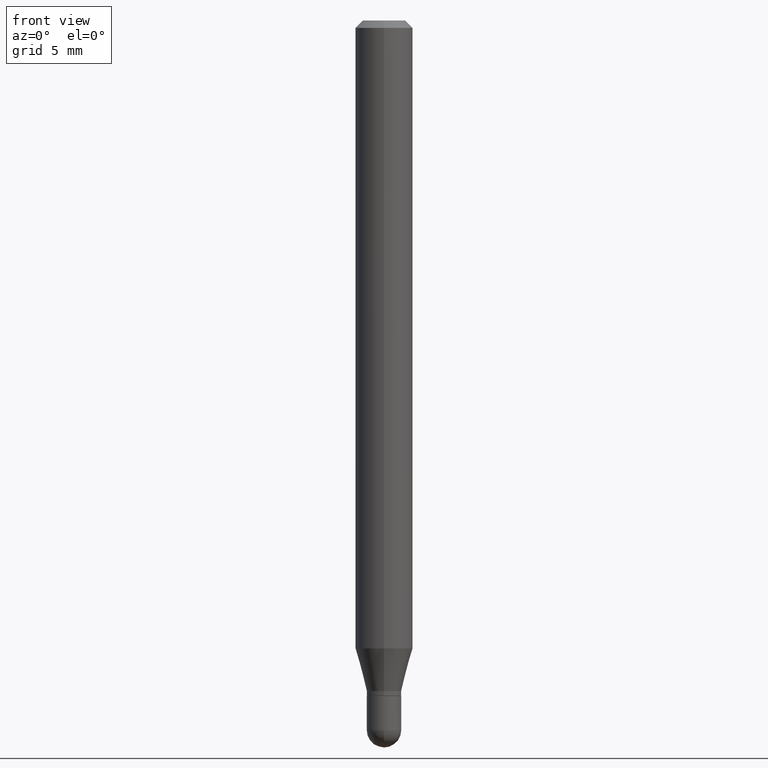
[diagram: clean part render]
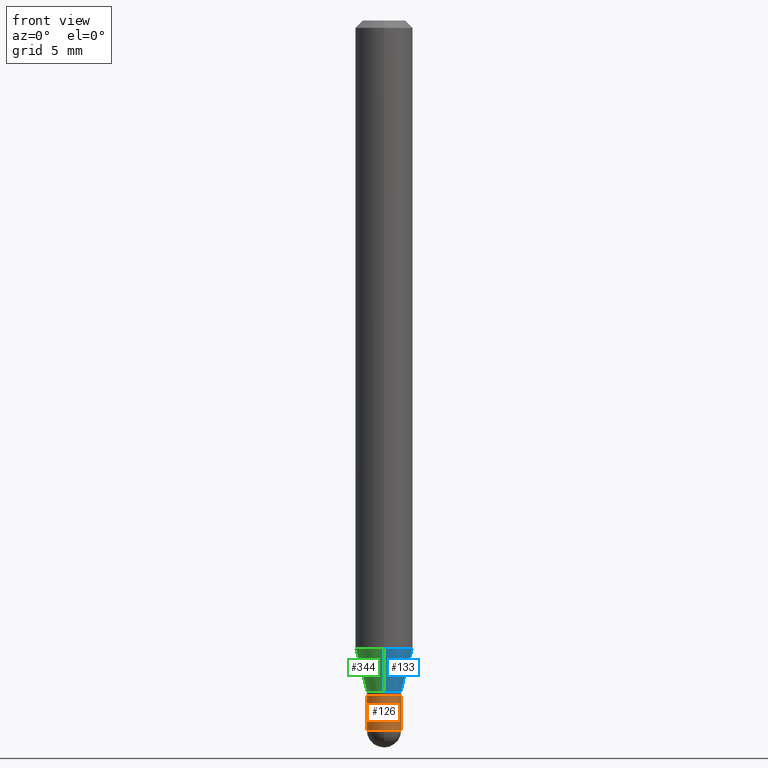
[diagram: same view with three faces highlighted in distinct colors, each labeled with its STEP entity id]
A machine part, front view with three faces highlighted in distinct colors.
Their STEP definitions:

[orange] entity #126 — the highlighted cylindrical surface (edge-blend (fillet) strip) has radius 0.9004 mm, axis along (-0, 0, 1).
#7 = VERTEX_POINT ( 'NONE', #377 ) ;
#22 = VECTOR ( 'NONE', #505, 39.37007874015748143 ) ;
#24 = CIRCLE ( 'NONE', #168, 0.03545000000000000234 ) ;
#30 = VERTEX_POINT ( 'NONE', #341 ) ;
#34 = VERTEX_POINT ( 'NONE', #193 ) ;
#43 = VECTOR ( 'NONE', #367, 39.37007874015748143 ) ;
#75 = CARTESIAN_POINT ( 'NONE',  ( 3.571974011754319692E-29, -5.099832217581240718E-15, -1.460650000000000004 ) ) ;
#76 = EDGE_CURVE ( 'NONE', #7, #104, #355, .T. ) ;
#83 = DIRECTION ( 'NONE',  ( -2.445468806185136597E-29, 3.491481338843145583E-15, 1.000000000000000000 ) ) ;
#87 = DIRECTION ( 'NONE',  ( 1.000000000000000000, -6.982962677686254089E-15, 0.000000000000000000 ) ) ;
#104 = VERTEX_POINT ( 'NONE', #310 ) ;
#126 = ADVANCED_FACE ( 'NONE', ( #249 ), #315, .T. ) ;
#132 = CIRCLE ( 'NONE', #155, 0.03545000000000000234 ) ;
#153 = CARTESIAN_POINT ( 'NONE',  ( 0.03545000000000000234, -5.223692518076700144E-15, -1.460650000000000004 ) ) ;
#155 = AXIS2_PLACEMENT_3D ( 'NONE', #374, #296, #443 ) ;
#168 = AXIS2_PLACEMENT_3D ( 'NONE', #171, #83, #87 ) ;
#171 = CARTESIAN_POINT ( 'NONE',  ( 3.398712546836102570E-29, -4.852460764724203802E-15, -1.389799999999999924 ) ) ;
#173 = LINE ( 'NONE', #437, #43 ) ;
#175 = ORIENTED_EDGE ( 'NONE', *, *, #207, .F. ) ;
#180 = AXIS2_PLACEMENT_3D ( 'NONE', #317, #248, #394 ) ;
#193 = CARTESIAN_POINT ( 'NONE',  ( -0.03545000000000000234, -4.724259091325766875E-15, -1.389799999999999924 ) ) ;
#200 = ORIENTED_EDGE ( 'NONE', *, *, #448, .F. ) ;
#207 = EDGE_CURVE ( 'NONE', #7, #34, #173, .T. ) ;
#240 = DIRECTION ( 'NONE',  ( -2.445468806185136597E-29, 3.491481338843145583E-15, 1.000000000000000000 ) ) ;
#242 = EDGE_LOOP ( 'NONE', ( #175, #457, #385, #337, #200 ) ) ;
#248 = DIRECTION ( 'NONE',  ( -2.445468806185136597E-29, 3.491481338843145583E-15, 1.000000000000000000 ) ) ;
#249 = FACE_OUTER_BOUND ( 'NONE', #242, .T. ) ;
#253 = AXIS2_PLACEMENT_3D ( 'NONE', #75, #240, #382 ) ;
#283 = CARTESIAN_POINT ( 'NONE',  ( 0.03545000000000000234, -2.475460269239781793E-16, 1.728604667019659440E-30 ) ) ;
#296 = DIRECTION ( 'NONE',  ( -2.445468806185136597E-29, 3.491481338843145583E-15, 1.000000000000000000 ) ) ;
#302 = EDGE_CURVE ( 'NONE', #438, #30, #347, .T. ) ;
#310 = CARTESIAN_POINT ( 'NONE',  ( -2.475460269239419903E-16, -0.03545000000000504692, -1.460650000000000004 ) ) ;
#315 = CYLINDRICAL_SURFACE ( 'NONE', #180, 0.03545000000000000234 ) ;
#317 = CARTESIAN_POINT ( 'NONE',  ( 0.000000000000000000, 0.000000000000000000, 0.000000000000000000 ) ) ;
#337 = ORIENTED_EDGE ( 'NONE', *, *, #302, .T. ) ;
#341 = CARTESIAN_POINT ( 'NONE',  ( 0.03545000000000000234, -5.100006791648181685E-15, -1.389799999999999924 ) ) ;
#347 = LINE ( 'NONE', #283, #22 ) ;
#355 = CIRCLE ( 'NONE', #253, 0.03545000000000000234 ) ;
#367 = DIRECTION ( 'NONE',  ( -2.445468806185136877E-29, 3.491481338843145188E-15, 1.000000000000000000 ) ) ;
#374 = CARTESIAN_POINT ( 'NONE',  ( 3.571974011754319692E-29, -5.099832217581240718E-15, -1.460650000000000004 ) ) ;
#377 = CARTESIAN_POINT ( 'NONE',  ( -0.03545000000000000234, -4.724259091325766875E-15, -1.460650000000000004 ) ) ;
#382 = DIRECTION ( 'NONE',  ( 1.000000000000000000, -6.982962677686254089E-15, 0.000000000000000000 ) ) ;
#385 = ORIENTED_EDGE ( 'NONE', *, *, #404, .T. ) ;
#394 = DIRECTION ( 'NONE',  ( 1.000000000000000000, -6.982962677686266711E-15, 4.876176775795935793E-29 ) ) ;
#404 = EDGE_CURVE ( 'NONE', #104, #438, #132, .T. ) ;
#437 = CARTESIAN_POINT ( 'NONE',  ( -0.03545000000000000234, 2.518873998269555325E-16, -1.743762489495364089E-30 ) ) ;
#438 = VERTEX_POINT ( 'NONE', #153 ) ;
#443 = DIRECTION ( 'NONE',  ( 1.000000000000000000, -6.982962677686254089E-15, 0.000000000000000000 ) ) ;
#448 = EDGE_CURVE ( 'NONE', #34, #30, #24, .T. ) ;
#457 = ORIENTED_EDGE ( 'NONE', *, *, #76, .T. ) ;
#505 = DIRECTION ( 'NONE',  ( -2.445468806185136877E-29, 3.491481338843145188E-15, 1.000000000000000000 ) ) ;

[blue] entity #133 — the highlighted conical surface has half-angle 15 deg.
#2 = CARTESIAN_POINT ( 'NONE',  ( 4.195754854663704065E-16, 0.05904999999999546029, -1.292023600941374362 ) ) ;
#12 = AXIS2_PLACEMENT_3D ( 'NONE', #129, #289, #251 ) ;
#21 = CARTESIAN_POINT ( 'NONE',  ( -2.475460269239438146E-16, -0.03545000000000474161, -1.380099999999999660 ) ) ;
#23 = EDGE_CURVE ( 'NONE', #208, #194, #413, .T. ) ;
#40 = DIRECTION ( 'NONE',  ( -6.982962677686266711E-15, -1.000000000000000000, 0.000000000000000000 ) ) ;
#72 = DIRECTION ( 'NONE',  ( -6.982962677686265922E-15, -1.000000000000000000, 4.626330217890369336E-15 ) ) ;
#74 = EDGE_CURVE ( 'NONE', #91, #208, #411, .T. ) ;
#91 = VERTEX_POINT ( 'NONE', #157 ) ;
#108 = EDGE_CURVE ( 'NONE', #223, #194, #221, .T. ) ;
#129 = CARTESIAN_POINT ( 'NONE',  ( 3.375046581879585142E-29, -4.818514514514622023E-15, -1.380099999999999660 ) ) ;
#133 = ADVANCED_FACE ( 'NONE', ( #467 ), #279, .T. ) ;
#136 = AXIS2_PLACEMENT_3D ( 'NONE', #388, #504, #40 ) ;
#152 = EDGE_LOOP ( 'NONE', ( #274, #393, #270, #412 ) ) ;
#157 = CARTESIAN_POINT ( 'NONE',  ( -2.475460269239438146E-16, -0.03545000000000474161, -1.380099999999999660 ) ) ;
#159 = CARTESIAN_POINT ( 'NONE',  ( 3.357314426466797821E-16, 0.03544999999999510348, -1.380099999999999660 ) ) ;
#179 = DIRECTION ( 'NONE',  ( -2.445508718121575604E-29, 3.491424182678518314E-15, 1.000000000000000000 ) ) ;
#194 = VERTEX_POINT ( 'NONE', #2 ) ;
#208 = VERTEX_POINT ( 'NONE', #159 ) ;
#221 = CIRCLE ( 'NONE', #229, 0.05904999999999999832 ) ;
#223 = VERTEX_POINT ( 'NONE', #246 ) ;
#227 = LINE ( 'NONE', #21, #512 ) ;
#229 = AXIS2_PLACEMENT_3D ( 'NONE', #463, #179, #72 ) ;
#232 = CARTESIAN_POINT ( 'NONE',  ( 2.518873998269886647E-16, 0.03544999999999510348, -1.380099999999999660 ) ) ;
#246 = CARTESIAN_POINT ( 'NONE',  ( -4.123439461173425769E-16, -0.05905000000000454330, -1.292023600941373696 ) ) ;
#251 = DIRECTION ( 'NONE',  ( -6.982962677686266711E-15, -1.000000000000000000, 0.000000000000000000 ) ) ;
#262 = VECTOR ( 'NONE', #370, 39.37007874015748143 ) ;
#270 = ORIENTED_EDGE ( 'NONE', *, *, #108, .F. ) ;
#274 = ORIENTED_EDGE ( 'NONE', *, *, #74, .T. ) ;
#279 = CONICAL_SURFACE ( 'NONE', #136, 0.03544999999999991908, 0.2617993877991501850 ) ;
#289 = DIRECTION ( 'NONE',  ( -2.445508718121575604E-29, 3.491424182678518314E-15, 1.000000000000000000 ) ) ;
#366 = DIRECTION ( 'NONE',  ( -1.807323732225329350E-15, -0.2588190451025180194, 0.9659258262890689783 ) ) ;
#370 = DIRECTION ( 'NONE',  ( 1.839019923739599526E-15, 0.2588190451025248473, 0.9659258262890670910 ) ) ;
#388 = CARTESIAN_POINT ( 'NONE',  ( 3.375046581879585142E-29, -4.818514514514622023E-15, -1.380099999999999660 ) ) ;
#393 = ORIENTED_EDGE ( 'NONE', *, *, #23, .T. ) ;
#408 = EDGE_CURVE ( 'NONE', #91, #223, #227, .T. ) ;
#411 = CIRCLE ( 'NONE', #12, 0.03544999999999991908 ) ;
#412 = ORIENTED_EDGE ( 'NONE', *, *, #408, .F. ) ;
#413 = LINE ( 'NONE', #232, #262 ) ;
#463 = CARTESIAN_POINT ( 'NONE',  ( 3.159654980120961895E-29, -4.511002444918093055E-15, -1.292023600941374140 ) ) ;
#467 = FACE_OUTER_BOUND ( 'NONE', #152, .T. ) ;
#504 = DIRECTION ( 'NONE',  ( -2.445508718121575604E-29, 3.491424182678518314E-15, 1.000000000000000000 ) ) ;
#512 = VECTOR ( 'NONE', #366, 39.37007874015749564 ) ;

[green] entity #344 — the highlighted conical surface has half-angle 15 deg.
#2 = CARTESIAN_POINT ( 'NONE',  ( 4.195754854663704065E-16, 0.05904999999999546029, -1.292023600941374362 ) ) ;
#5 = DIRECTION ( 'NONE',  ( -2.445508718121575604E-29, 3.491424182678518314E-15, 1.000000000000000000 ) ) ;
#21 = CARTESIAN_POINT ( 'NONE',  ( -2.475460269239438146E-16, -0.03545000000000474161, -1.380099999999999660 ) ) ;
#23 = EDGE_CURVE ( 'NONE', #208, #194, #413, .T. ) ;
#59 = CIRCLE ( 'NONE', #485, 0.03544999999999991908 ) ;
#61 = DIRECTION ( 'NONE',  ( -6.982962677686266711E-15, -1.000000000000000000, 0.000000000000000000 ) ) ;
#85 = CIRCLE ( 'NONE', #368, 0.05904999999999999832 ) ;
#91 = VERTEX_POINT ( 'NONE', #157 ) ;
#131 = CARTESIAN_POINT ( 'NONE',  ( 3.375046581879585142E-29, -4.818514514514622023E-15, -1.380099999999999660 ) ) ;
#138 = FACE_OUTER_BOUND ( 'NONE', #414, .T. ) ;
#150 = ORIENTED_EDGE ( 'NONE', *, *, #161, .F. ) ;
#157 = CARTESIAN_POINT ( 'NONE',  ( -2.475460269239438146E-16, -0.03545000000000474161, -1.380099999999999660 ) ) ;
#159 = CARTESIAN_POINT ( 'NONE',  ( 3.357314426466797821E-16, 0.03544999999999510348, -1.380099999999999660 ) ) ;
#161 = EDGE_CURVE ( 'NONE', #194, #223, #85, .T. ) ;
#164 = ORIENTED_EDGE ( 'NONE', *, *, #243, .T. ) ;
#166 = AXIS2_PLACEMENT_3D ( 'NONE', #455, #484, #61 ) ;
#181 = DIRECTION ( 'NONE',  ( -6.982962677686266711E-15, -1.000000000000000000, 0.000000000000000000 ) ) ;
#194 = VERTEX_POINT ( 'NONE', #2 ) ;
#208 = VERTEX_POINT ( 'NONE', #159 ) ;
#223 = VERTEX_POINT ( 'NONE', #246 ) ;
#227 = LINE ( 'NONE', #21, #512 ) ;
#232 = CARTESIAN_POINT ( 'NONE',  ( 2.518873998269886647E-16, 0.03544999999999510348, -1.380099999999999660 ) ) ;
#243 = EDGE_CURVE ( 'NONE', #208, #91, #59, .T. ) ;
#246 = CARTESIAN_POINT ( 'NONE',  ( -4.123439461173425769E-16, -0.05905000000000454330, -1.292023600941373696 ) ) ;
#247 = ORIENTED_EDGE ( 'NONE', *, *, #408, .T. ) ;
#262 = VECTOR ( 'NONE', #370, 39.37007874015748143 ) ;
#280 = DIRECTION ( 'NONE',  ( -6.982962677686265922E-15, -1.000000000000000000, 4.626330217890369336E-15 ) ) ;
#344 = ADVANCED_FACE ( 'NONE', ( #138 ), #376, .T. ) ;
#364 = ORIENTED_EDGE ( 'NONE', *, *, #23, .F. ) ;
#366 = DIRECTION ( 'NONE',  ( -1.807323732225329350E-15, -0.2588190451025180194, 0.9659258262890689783 ) ) ;
#368 = AXIS2_PLACEMENT_3D ( 'NONE', #501, #462, #280 ) ;
#370 = DIRECTION ( 'NONE',  ( 1.839019923739599526E-15, 0.2588190451025248473, 0.9659258262890670910 ) ) ;
#376 = CONICAL_SURFACE ( 'NONE', #166, 0.03544999999999991908, 0.2617993877991501850 ) ;
#408 = EDGE_CURVE ( 'NONE', #91, #223, #227, .T. ) ;
#413 = LINE ( 'NONE', #232, #262 ) ;
#414 = EDGE_LOOP ( 'NONE', ( #364, #164, #247, #150 ) ) ;
#455 = CARTESIAN_POINT ( 'NONE',  ( 3.375046581879585142E-29, -4.818514514514622023E-15, -1.380099999999999660 ) ) ;
#462 = DIRECTION ( 'NONE',  ( -2.445508718121575604E-29, 3.491424182678518314E-15, 1.000000000000000000 ) ) ;
#484 = DIRECTION ( 'NONE',  ( -2.445508718121575604E-29, 3.491424182678518314E-15, 1.000000000000000000 ) ) ;
#485 = AXIS2_PLACEMENT_3D ( 'NONE', #131, #5, #181 ) ;
#501 = CARTESIAN_POINT ( 'NONE',  ( 3.159654980120961895E-29, -4.511002444918093055E-15, -1.292023600941374140 ) ) ;
#512 = VECTOR ( 'NONE', #366, 39.37007874015749564 ) ;